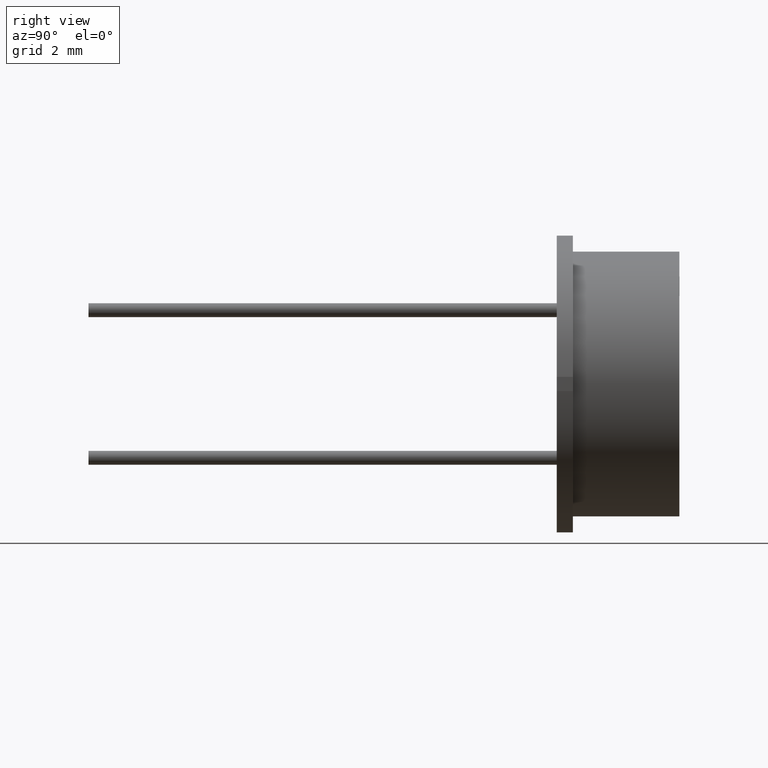
[diagram: clean part render]
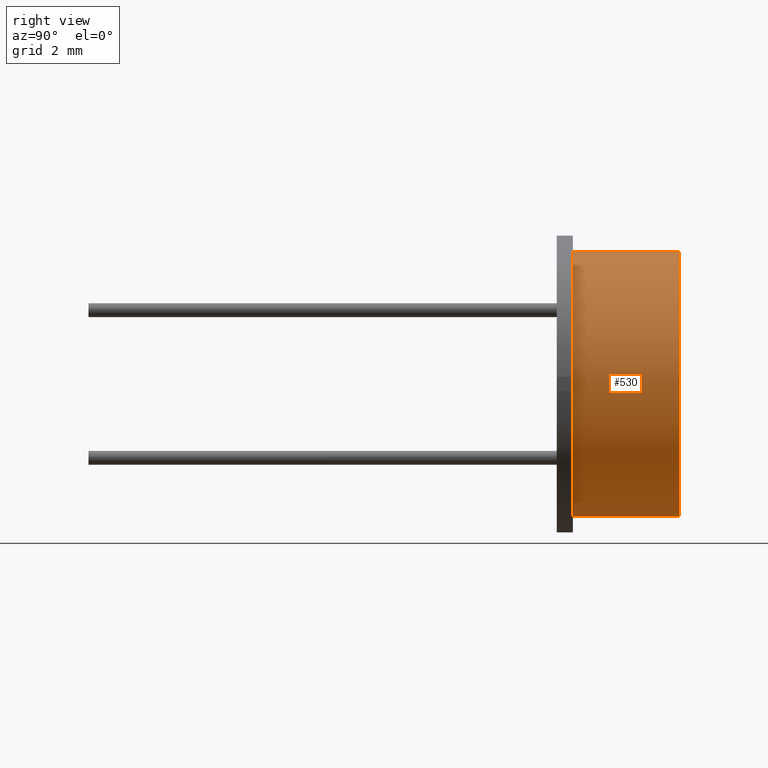
[diagram: same view with one face highlighted and labeled with its STEP entity id]
A machine part, right view. The second image highlights one B-rep face of the part: STEP entity #530.
In plain terms, the highlighted cylindrical surface (partial cylindrical patch) has radius 4.1 mm, axis along (-0, -1, -0).
Its self-contained STEP definition (entity closure, byte-faithful):
#275 = EDGE_CURVE ( 'NONE', #2193, #442, #2378, .T. ) ;
#442 = VERTEX_POINT ( 'NONE', #1703 ) ;
#530 = ADVANCED_FACE ( 'NONE', ( #918 ), #2384, .T. ) ;
#609 = CARTESIAN_POINT ( 'NONE',  ( 0.000000000000000000, 0.5000000000000000000, 0.000000000000000000 ) ) ;
#672 = CARTESIAN_POINT ( 'NONE',  ( 0.000000000000000000, 3.799999999999999822, -4.099999999999999645 ) ) ;
#826 = CARTESIAN_POINT ( 'NONE',  ( 0.000000000000000000, 0.5000000000000000000, -4.099999999999999645 ) ) ;
#848 = AXIS2_PLACEMENT_3D ( 'NONE', #609, #1768, #2043 ) ;
#854 = CARTESIAN_POINT ( 'NONE',  ( 5.021051876504147385E-16, 3.799999999999999822, 4.099999999999999645 ) ) ;
#856 = EDGE_CURVE ( 'NONE', #1858, #2497, #2253, .T. ) ;
#918 = FACE_OUTER_BOUND ( 'NONE', #2388, .T. ) ;
#1009 = ORIENTED_EDGE ( 'NONE', *, *, #275, .F. ) ;
#1117 = ORIENTED_EDGE ( 'NONE', *, *, #1979, .T. ) ;
#1190 = VECTOR ( 'NONE', #2244, 1000.000000000000000 ) ;
#1218 = EDGE_CURVE ( 'NONE', #442, #2497, #2689, .T. ) ;
#1639 = VECTOR ( 'NONE', #2647, 1000.000000000000000 ) ;
#1642 = AXIS2_PLACEMENT_3D ( 'NONE', #3298, #1809, #2440 ) ;
#1649 = CARTESIAN_POINT ( 'NONE',  ( 0.000000000000000000, 3.799999999999999822, 0.000000000000000000 ) ) ;
#1703 = CARTESIAN_POINT ( 'NONE',  ( 0.000000000000000000, 3.799999999999999822, -4.099999999999999645 ) ) ;
#1768 = DIRECTION ( 'NONE',  ( 0.000000000000000000, 1.000000000000000000, 0.000000000000000000 ) ) ;
#1809 = DIRECTION ( 'NONE',  ( -0.000000000000000000, -1.000000000000000000, -0.000000000000000000 ) ) ;
#1858 = VERTEX_POINT ( 'NONE', #2691 ) ;
#1959 = LINE ( 'NONE', #3131, #1190 ) ;
#1979 = EDGE_CURVE ( 'NONE', #2193, #1858, #1959, .T. ) ;
#2043 = DIRECTION ( 'NONE',  ( 0.000000000000000000, 0.000000000000000000, 1.000000000000000000 ) ) ;
#2193 = VERTEX_POINT ( 'NONE', #854 ) ;
#2244 = DIRECTION ( 'NONE',  ( -0.000000000000000000, -1.000000000000000000, -0.000000000000000000 ) ) ;
#2253 = CIRCLE ( 'NONE', #848, 4.099999999999999645 ) ;
#2335 = ORIENTED_EDGE ( 'NONE', *, *, #1218, .F. ) ;
#2378 = CIRCLE ( 'NONE', #3043, 4.099999999999999645 ) ;
#2384 = CYLINDRICAL_SURFACE ( 'NONE', #1642, 4.099999999999999645 ) ;
#2388 = EDGE_LOOP ( 'NONE', ( #1009, #1117, #3260, #2335 ) ) ;
#2440 = DIRECTION ( 'NONE',  ( 0.000000000000000000, 0.000000000000000000, -1.000000000000000000 ) ) ;
#2497 = VERTEX_POINT ( 'NONE', #826 ) ;
#2647 = DIRECTION ( 'NONE',  ( -0.000000000000000000, -1.000000000000000000, -0.000000000000000000 ) ) ;
#2689 = LINE ( 'NONE', #672, #1639 ) ;
#2691 = CARTESIAN_POINT ( 'NONE',  ( 5.021051876504147385E-16, 0.5000000000000000000, 4.099999999999999645 ) ) ;
#2819 = DIRECTION ( 'NONE',  ( 0.000000000000000000, 0.000000000000000000, 1.000000000000000000 ) ) ;
#3043 = AXIS2_PLACEMENT_3D ( 'NONE', #1649, #3107, #2819 ) ;
#3107 = DIRECTION ( 'NONE',  ( 0.000000000000000000, 1.000000000000000000, 0.000000000000000000 ) ) ;
#3131 = CARTESIAN_POINT ( 'NONE',  ( 5.021051876504147385E-16, 3.799999999999999822, 4.099999999999999645 ) ) ;
#3260 = ORIENTED_EDGE ( 'NONE', *, *, #856, .T. ) ;
#3298 = CARTESIAN_POINT ( 'NONE',  ( 0.000000000000000000, 3.799999999999999822, 0.000000000000000000 ) ) ;